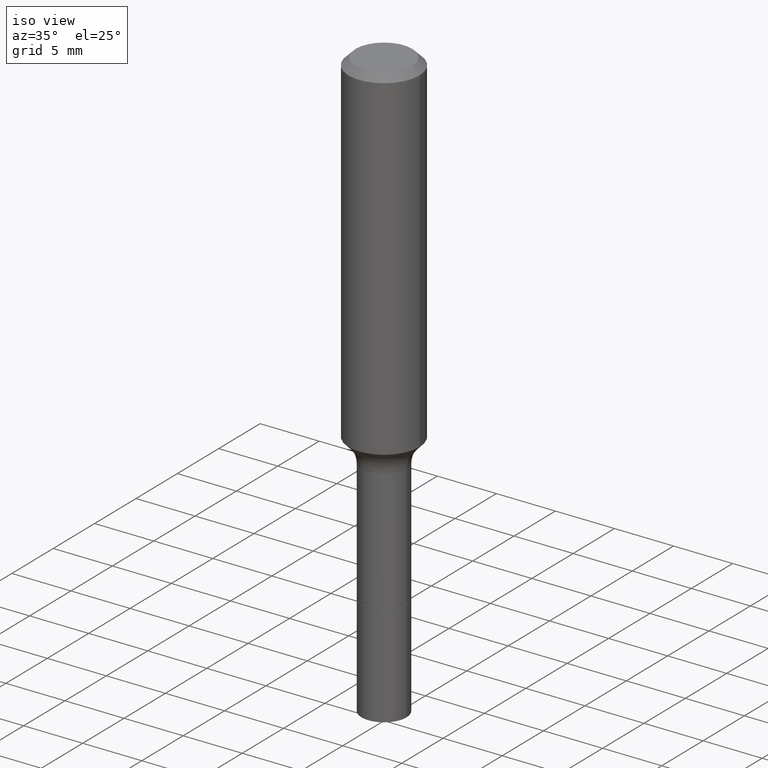
[diagram: clean part render]
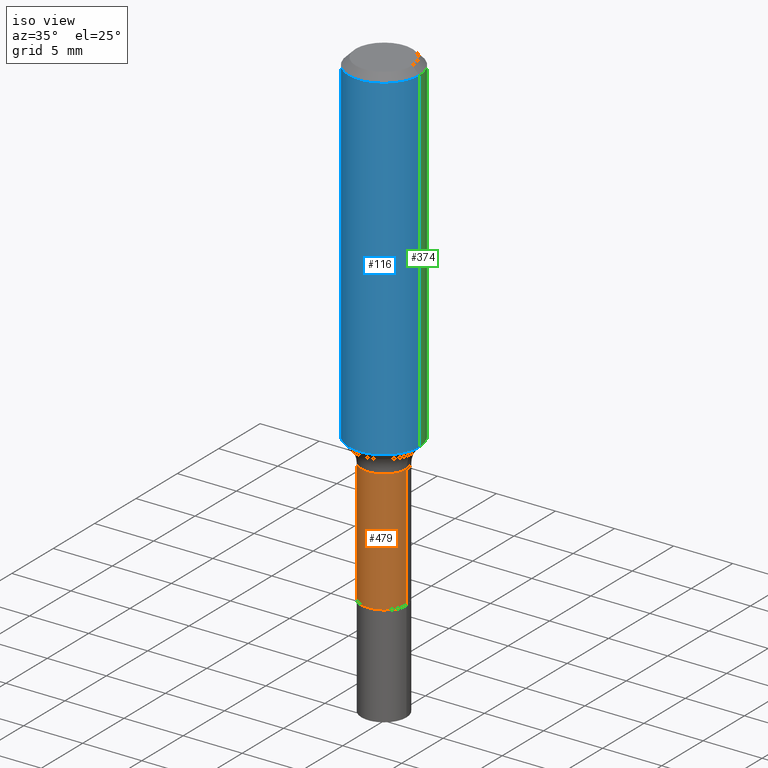
[diagram: same view with three faces highlighted in distinct colors, each labeled with its STEP entity id]
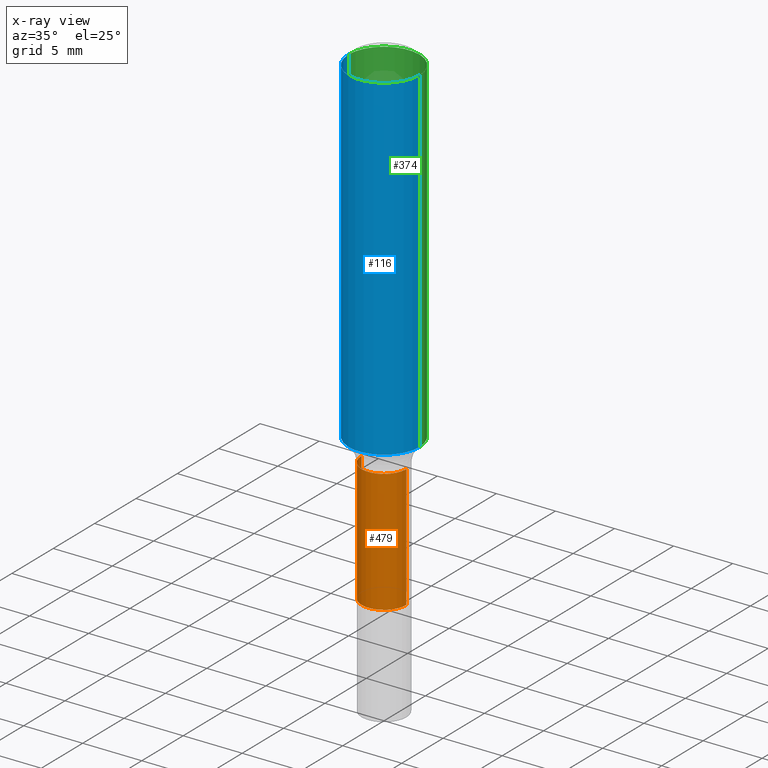
[diagram: x-ray of the same camera — body ghosted, the three highlighted faces saturated]
A machine part, iso view with three faces highlighted in distinct colors.
The next image is the same camera in x-ray (body ghosted, the three faces saturated) — at least one of them is partly hidden behind the body in this view.
Their STEP definitions:

[orange] entity #479 — the highlighted cylindrical surface (edge-blend (fillet) strip) has radius 1.8986 mm, axis along (-0, 0, 1).
#8 = CARTESIAN_POINT ( 'NONE',  ( -0.07474999999999996925, 5.311306949806746704E-16, -3.676903979965540069E-30 ) ) ;
#11 = DIRECTION ( 'NONE',  ( 1.000000000000000000, -6.982962677686263555E-15, 0.000000000000000000 ) ) ;
#21 = VECTOR ( 'NONE', #441, 39.37007874015748143 ) ;
#40 = VERTEX_POINT ( 'NONE', #453 ) ;
#46 = VERTEX_POINT ( 'NONE', #55 ) ;
#53 = VERTEX_POINT ( 'NONE', #256 ) ;
#55 = CARTESIAN_POINT ( 'NONE',  ( -0.07474999999999999700, -4.445103083205517975E-15, -1.630000000000000115 ) ) ;
#91 = CARTESIAN_POINT ( 'NONE',  ( 3.986114154081773303E-29, -5.691114582314327248E-15, -1.630000000000000115 ) ) ;
#98 = ORIENTED_EDGE ( 'NONE', *, *, #421, .F. ) ;
#102 = DIRECTION ( 'NONE',  ( -2.445468806185136597E-29, 3.491481338843145583E-15, 1.000000000000000000 ) ) ;
#110 = ORIENTED_EDGE ( 'NONE', *, *, #411, .F. ) ;
#122 = LINE ( 'NONE', #8, #21 ) ;
#161 = LINE ( 'NONE', #317, #283 ) ;
#171 = DIRECTION ( 'NONE',  ( 1.000000000000000000, -6.982962677686271444E-15, 0.000000000000000000 ) ) ;
#190 = AXIS2_PLACEMENT_3D ( 'NONE', #91, #365, #171 ) ;
#206 = DIRECTION ( 'NONE',  ( -2.445468806185136597E-29, 3.491481338843145583E-15, 1.000000000000000000 ) ) ;
#256 = CARTESIAN_POINT ( 'NONE',  ( 0.07474999999999994149, -4.783329434215106738E-15, -1.220499999999999918 ) ) ;
#283 = VECTOR ( 'NONE', #478, 39.37007874015748143 ) ;
#290 = VERTEX_POINT ( 'NONE', #482 ) ;
#307 = DIRECTION ( 'NONE',  ( 1.000000000000000000, -6.982962677686266711E-15, 4.876176775795935793E-29 ) ) ;
#317 = CARTESIAN_POINT ( 'NONE',  ( 0.07474999999999996925, -5.219764601570482039E-16, 3.644942139907460492E-30 ) ) ;
#327 = CARTESIAN_POINT ( 'NONE',  ( 2.984694677948959472E-29, -4.261352974058059028E-15, -1.220499999999999918 ) ) ;
#328 = CIRCLE ( 'NONE', #190, 0.07474999999999999700 ) ;
#365 = DIRECTION ( 'NONE',  ( -2.445468806185136597E-29, 3.491481338843145583E-15, 1.000000000000000000 ) ) ;
#370 = ORIENTED_EDGE ( 'NONE', *, *, #415, .T. ) ;
#375 = CYLINDRICAL_SURFACE ( 'NONE', #428, 0.07474999999999996925 ) ;
#382 = CARTESIAN_POINT ( 'NONE',  ( 0.000000000000000000, 0.000000000000000000, 0.000000000000000000 ) ) ;
#404 = EDGE_CURVE ( 'NONE', #40, #53, #161, .T. ) ;
#411 = EDGE_CURVE ( 'NONE', #46, #290, #122, .T. ) ;
#415 = EDGE_CURVE ( 'NONE', #46, #40, #328, .T. ) ;
#421 = EDGE_CURVE ( 'NONE', #290, #53, #487, .T. ) ;
#428 = AXIS2_PLACEMENT_3D ( 'NONE', #382, #102, #307 ) ;
#440 = EDGE_LOOP ( 'NONE', ( #110, #370, #442, #98 ) ) ;
#441 = DIRECTION ( 'NONE',  ( -2.445468806185136877E-29, 3.491481338843145188E-15, 1.000000000000000000 ) ) ;
#442 = ORIENTED_EDGE ( 'NONE', *, *, #404, .T. ) ;
#453 = CARTESIAN_POINT ( 'NONE',  ( 0.07474999999999999700, -6.213091042471375748E-15, -1.630000000000000115 ) ) ;
#471 = FACE_OUTER_BOUND ( 'NONE', #440, .T. ) ;
#478 = DIRECTION ( 'NONE',  ( -2.445468806185136877E-29, 3.491481338843145188E-15, 1.000000000000000000 ) ) ;
#479 = ADVANCED_FACE ( 'NONE', ( #471 ), #375, .T. ) ;
#482 = CARTESIAN_POINT ( 'NONE',  ( -0.07474999999999994149, -4.445103083205517975E-15, -1.220499999999999918 ) ) ;
#487 = CIRCLE ( 'NONE', #503, 0.07474999999999994149 ) ;
#503 = AXIS2_PLACEMENT_3D ( 'NONE', #327, #206, #11 ) ;

[blue] entity #116 — the highlighted cylindrical surface (partial cylindrical patch) has radius 2.9997 mm, axis along (-0, 0, 1).
#2 = ORIENTED_EDGE ( 'NONE', *, *, #299, .F. ) ;
#25 = DIRECTION ( 'NONE',  ( -2.445468806185136877E-29, 3.491481338843145188E-15, 1.000000000000000000 ) ) ;
#28 = DIRECTION ( 'NONE',  ( -2.445468806185136597E-29, 3.491481338843145583E-15, 1.000000000000000000 ) ) ;
#30 = LINE ( 'NONE', #111, #198 ) ;
#35 = VERTEX_POINT ( 'NONE', #288 ) ;
#50 = CARTESIAN_POINT ( 'NONE',  ( 2.793948058174047032E-29, -3.989017354111862493E-15, -1.142499978371234404 ) ) ;
#79 = EDGE_CURVE ( 'NONE', #223, #407, #335, .T. ) ;
#93 = AXIS2_PLACEMENT_3D ( 'NONE', #300, #269, #509 ) ;
#100 = CIRCLE ( 'NONE', #400, 0.1181000000000001493 ) ;
#111 = CARTESIAN_POINT ( 'NONE',  ( 0.1181000000000000660, -8.246878922347485584E-16, 5.758764772215003944E-30 ) ) ;
#115 = VECTOR ( 'NONE', #25, 39.37007874015748143 ) ;
#116 = ADVANCED_FACE ( 'NONE', ( #347 ), #267, .T. ) ;
#155 = DIRECTION ( 'NONE',  ( 1.000000000000000000, -6.982962677686266711E-15, 0.000000000000000000 ) ) ;
#170 = EDGE_LOOP ( 'NONE', ( #414, #345, #364, #2 ) ) ;
#181 = CARTESIAN_POINT ( 'NONE',  ( -0.1181000000000000660, 8.391509709326787887E-16, -5.809262341591047287E-30 ) ) ;
#186 = DIRECTION ( 'NONE',  ( -2.445468806185136877E-29, 3.491481338843145188E-15, 1.000000000000000000 ) ) ;
#187 = CARTESIAN_POINT ( 'NONE',  ( 0.1181000000000001493, -4.813705246346611545E-15, -1.142499978371234404 ) ) ;
#198 = VECTOR ( 'NONE', #186, 39.37007874015748143 ) ;
#223 = VERTEX_POINT ( 'NONE', #296 ) ;
#237 = AXIS2_PLACEMENT_3D ( 'NONE', #323, #250, #155 ) ;
#241 = EDGE_CURVE ( 'NONE', #281, #35, #30, .T. ) ;
#246 = CARTESIAN_POINT ( 'NONE',  ( -0.1180999999999999966, -1.196592100734989792E-15, -0.02362000000000014088 ) ) ;
#250 = DIRECTION ( 'NONE',  ( -2.445468806185136597E-29, 3.491481338843145583E-15, 1.000000000000000000 ) ) ;
#255 = CIRCLE ( 'NONE', #237, 0.1180999999999999966 ) ;
#267 = CYLINDRICAL_SURFACE ( 'NONE', #93, 0.1181000000000000660 ) ;
#269 = DIRECTION ( 'NONE',  ( -2.445468806185136597E-29, 3.491481338843145583E-15, 1.000000000000000000 ) ) ;
#281 = VERTEX_POINT ( 'NONE', #187 ) ;
#288 = CARTESIAN_POINT ( 'NONE',  ( 0.1180999999999999966, -9.071566814582237199E-16, -0.02362000000000014088 ) ) ;
#296 = CARTESIAN_POINT ( 'NONE',  ( -0.1181000000000001493, -3.149866383179183113E-15, -1.142499978371234404 ) ) ;
#299 = EDGE_CURVE ( 'NONE', #407, #35, #255, .T. ) ;
#300 = CARTESIAN_POINT ( 'NONE',  ( 0.000000000000000000, 0.000000000000000000, 0.000000000000000000 ) ) ;
#323 = CARTESIAN_POINT ( 'NONE',  ( 5.776197320209327532E-31, -8.246878922347559293E-17, -0.02362000000000014088 ) ) ;
#335 = LINE ( 'NONE', #181, #115 ) ;
#345 = ORIENTED_EDGE ( 'NONE', *, *, #443, .T. ) ;
#347 = FACE_OUTER_BOUND ( 'NONE', #170, .T. ) ;
#364 = ORIENTED_EDGE ( 'NONE', *, *, #241, .T. ) ;
#384 = DIRECTION ( 'NONE',  ( 1.000000000000000000, -6.982962677686264344E-15, 0.000000000000000000 ) ) ;
#400 = AXIS2_PLACEMENT_3D ( 'NONE', #50, #28, #384 ) ;
#407 = VERTEX_POINT ( 'NONE', #246 ) ;
#414 = ORIENTED_EDGE ( 'NONE', *, *, #79, .F. ) ;
#443 = EDGE_CURVE ( 'NONE', #223, #281, #100, .T. ) ;
#509 = DIRECTION ( 'NONE',  ( 1.000000000000000000, -6.982962677686266711E-15, 4.876176775795936353E-29 ) ) ;

[green] entity #374 — the highlighted cylindrical surface (partial cylindrical patch) has radius 2.9997 mm, axis along (-0, 0, 1).
#4 = AXIS2_PLACEMENT_3D ( 'NONE', #313, #390, #204 ) ;
#16 = EDGE_CURVE ( 'NONE', #35, #407, #396, .T. ) ;
#23 = DIRECTION ( 'NONE',  ( -2.445468806185136597E-29, 3.491481338843145583E-15, 1.000000000000000000 ) ) ;
#25 = DIRECTION ( 'NONE',  ( -2.445468806185136877E-29, 3.491481338843145188E-15, 1.000000000000000000 ) ) ;
#30 = LINE ( 'NONE', #111, #198 ) ;
#35 = VERTEX_POINT ( 'NONE', #288 ) ;
#73 = AXIS2_PLACEMENT_3D ( 'NONE', #140, #23, #216 ) ;
#79 = EDGE_CURVE ( 'NONE', #223, #407, #335, .T. ) ;
#111 = CARTESIAN_POINT ( 'NONE',  ( 0.1181000000000000660, -8.246878922347485584E-16, 5.758764772215003944E-30 ) ) ;
#115 = VECTOR ( 'NONE', #25, 39.37007874015748143 ) ;
#129 = AXIS2_PLACEMENT_3D ( 'NONE', #309, #468, #498 ) ;
#140 = CARTESIAN_POINT ( 'NONE',  ( 5.776197320209327532E-31, -8.246878922347559293E-17, -0.02362000000000014088 ) ) ;
#181 = CARTESIAN_POINT ( 'NONE',  ( -0.1181000000000000660, 8.391509709326787887E-16, -5.809262341591047287E-30 ) ) ;
#186 = DIRECTION ( 'NONE',  ( -2.445468806185136877E-29, 3.491481338843145188E-15, 1.000000000000000000 ) ) ;
#187 = CARTESIAN_POINT ( 'NONE',  ( 0.1181000000000001493, -4.813705246346611545E-15, -1.142499978371234404 ) ) ;
#198 = VECTOR ( 'NONE', #186, 39.37007874015748143 ) ;
#204 = DIRECTION ( 'NONE',  ( 1.000000000000000000, -6.982962677686266711E-15, 4.876176775795936353E-29 ) ) ;
#213 = EDGE_CURVE ( 'NONE', #281, #223, #351, .T. ) ;
#216 = DIRECTION ( 'NONE',  ( 1.000000000000000000, -6.982962677686266711E-15, 0.000000000000000000 ) ) ;
#223 = VERTEX_POINT ( 'NONE', #296 ) ;
#236 = ORIENTED_EDGE ( 'NONE', *, *, #16, .F. ) ;
#240 = EDGE_LOOP ( 'NONE', ( #481, #359, #236, #244 ) ) ;
#241 = EDGE_CURVE ( 'NONE', #281, #35, #30, .T. ) ;
#244 = ORIENTED_EDGE ( 'NONE', *, *, #241, .F. ) ;
#246 = CARTESIAN_POINT ( 'NONE',  ( -0.1180999999999999966, -1.196592100734989792E-15, -0.02362000000000014088 ) ) ;
#281 = VERTEX_POINT ( 'NONE', #187 ) ;
#288 = CARTESIAN_POINT ( 'NONE',  ( 0.1180999999999999966, -9.071566814582237199E-16, -0.02362000000000014088 ) ) ;
#296 = CARTESIAN_POINT ( 'NONE',  ( -0.1181000000000001493, -3.149866383179183113E-15, -1.142499978371234404 ) ) ;
#309 = CARTESIAN_POINT ( 'NONE',  ( 2.793948058174047032E-29, -3.989017354111862493E-15, -1.142499978371234404 ) ) ;
#313 = CARTESIAN_POINT ( 'NONE',  ( 0.000000000000000000, 0.000000000000000000, 0.000000000000000000 ) ) ;
#335 = LINE ( 'NONE', #181, #115 ) ;
#351 = CIRCLE ( 'NONE', #129, 0.1181000000000001493 ) ;
#359 = ORIENTED_EDGE ( 'NONE', *, *, #79, .T. ) ;
#374 = ADVANCED_FACE ( 'NONE', ( #513 ), #434, .T. ) ;
#390 = DIRECTION ( 'NONE',  ( -2.445468806185136597E-29, 3.491481338843145583E-15, 1.000000000000000000 ) ) ;
#396 = CIRCLE ( 'NONE', #73, 0.1180999999999999966 ) ;
#407 = VERTEX_POINT ( 'NONE', #246 ) ;
#434 = CYLINDRICAL_SURFACE ( 'NONE', #4, 0.1181000000000000660 ) ;
#468 = DIRECTION ( 'NONE',  ( -2.445468806185136597E-29, 3.491481338843145583E-15, 1.000000000000000000 ) ) ;
#481 = ORIENTED_EDGE ( 'NONE', *, *, #213, .T. ) ;
#498 = DIRECTION ( 'NONE',  ( 1.000000000000000000, -6.982962677686264344E-15, 0.000000000000000000 ) ) ;
#513 = FACE_OUTER_BOUND ( 'NONE', #240, .T. ) ;